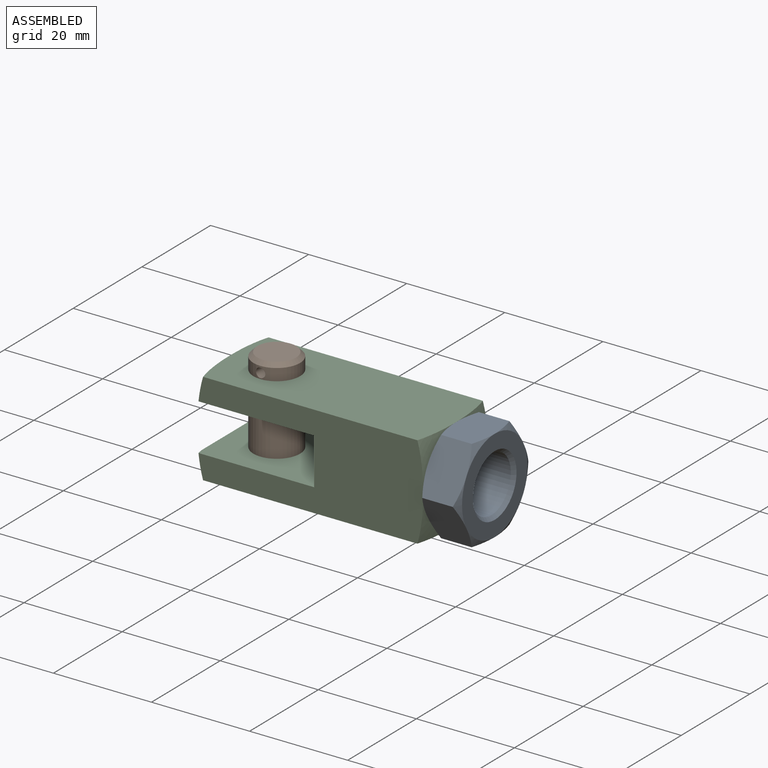
[diagram: assembled view]
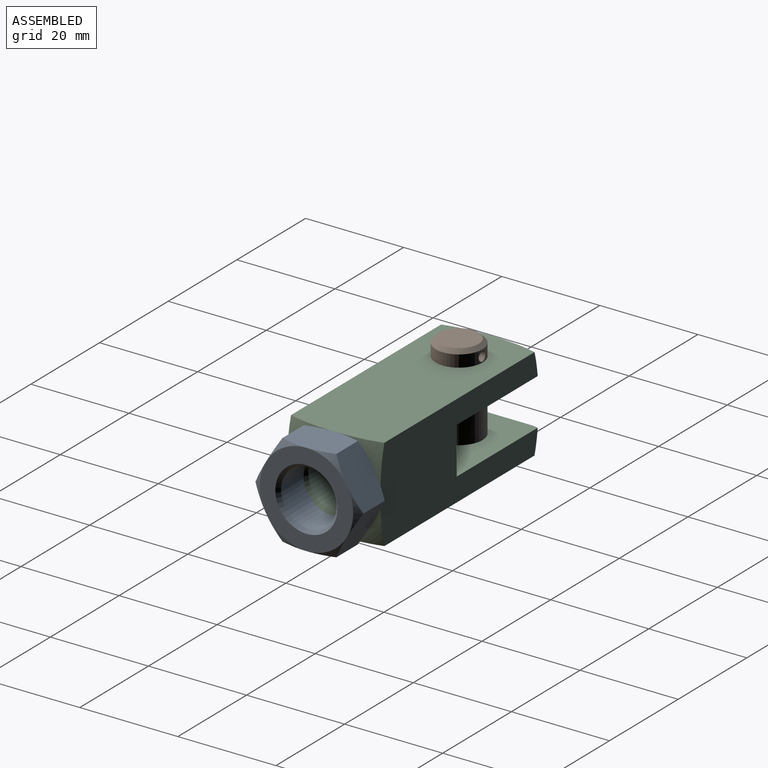
[diagram: assembled view, second angle]
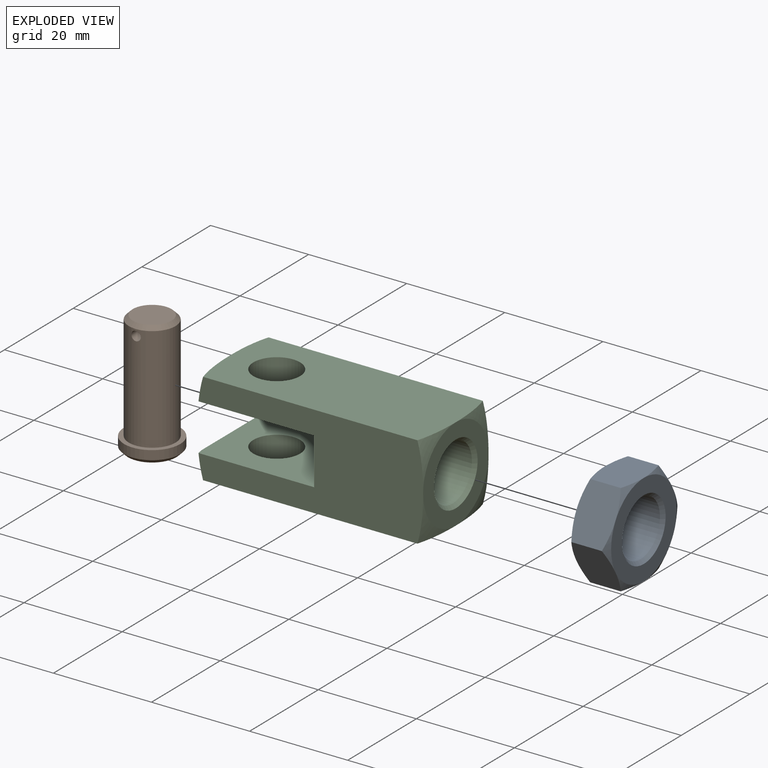
[diagram: exploded view]
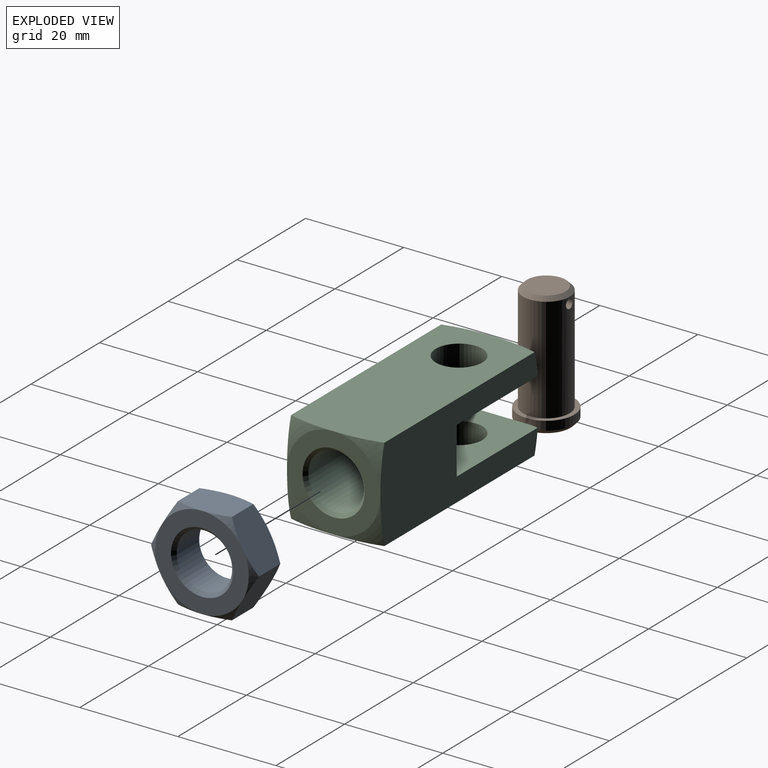
[diagram: exploded view, second angle]
ASSEMBLY  parts=3 mates=2
PART A: 23 faces, bbox 7.9x22x22 mm
  f0: plane 11x7.94mm, normal (0,0,1), area 80.9mm2, adj f1,f2,f6,f7,f15,f16
  f1: plane 9.53x7.94mm, normal (0,0.87,0.5), area 80.9mm2, adj f0,f5,f7,f14,f16,f19
  f2: plane 9.53x7.94mm, normal (0,-0.87,0.5), area 80.9mm2, adj f0,f4,f6,f8,f13,f15
  f3: plane 19.05x19.05mm, normal (1,0,0), area 158.3mm2, adj f4,f5,f15,f16,f17,f18,f22
  f4: cone r=11.43mm half-angle=60deg, axis (-1,0,0), area 5.6mm2, adj f2,f3,f13
  f5: cone r=11.43mm half-angle=60deg, axis (-1,0,0), area 5.6mm2, adj f1,f3,f14
  f6: cone r=9.53mm half-angle=60deg, axis (1,0,0), area 5.6mm2, adj f0,f2,f9
  f7: cone r=9.53mm half-angle=60deg, axis (1,0,0), area 5.6mm2, adj f0,f1,f9
  f8: cone r=9.53mm half-angle=60deg, axis (1,0,0), area 5.6mm2, adj f2,f9,f13
  f9: plane 19.05x19.05mm, normal (-1,0,0), area 158.3mm2, adj f6,f7,f8,f10,f11,f19,f20
  f10: cone r=9.53mm half-angle=60deg, axis (1,0,0), area 5.6mm2, adj f9,f12,f13
  f11: cone r=9.53mm half-angle=60deg, axis (1,0,0), area 5.6mm2, adj f9,f12,f14
  f12: plane 11x7.94mm, normal (0,0,-1), area 80.9mm2, adj f10,f11,f13,f14,f17,f18
  f13: plane 9.53x7.94mm, normal (0,-0.87,-0.5), area 80.9mm2, adj f2,f4,f8,f10,f12,f17
  f14: plane 9.53x7.94mm, normal (0,0.87,-0.5), area 80.9mm2, adj f1,f5,f11,f12,f18,f19
  f15: cone r=11.43mm half-angle=60deg, axis (-1,0,0), area 5.6mm2, adj f0,f2,f3
  f16: cone r=11.43mm half-angle=60deg, axis (-1,0,0), area 5.6mm2, adj f0,f1,f3
  f17: cone r=11.43mm half-angle=60deg, axis (-1,0,0), area 5.6mm2, adj f3,f12,f13
  f18: cone r=11.43mm half-angle=60deg, axis (-1,0,0), area 5.6mm2, adj f3,f12,f14
  f19: cone r=9.53mm half-angle=60deg, axis (1,0,0), area 5.6mm2, adj f1,f9,f14
  f20: cone r=6.35mm half-angle=45deg, axis (-1,0,0), area 36.7mm2, adj f9,f21
  f21: cylinder r=5.66mm len=11.33mm, axis (-1,0,0), area 233.5mm2, adj f20,f22
  f22: cone r=5.66mm half-angle=45deg, axis (1,0,0), area 36.7mm2, adj f3,f21
PART B: 8 faces, bbox 11.4x11.4x24.9 mm
  f0: cylinder r=0.95mm len=9.53mm, axis (0,1,0), area 57mm2, adj f6
  f1: plane 9.84x9.84mm, normal (0,0,-1), area 76.1mm2, adj f2
  f2: cone r=5.71mm half-angle=45deg, axis (0,0,1), area 37.5mm2, adj f1,f3
  f3: cylinder r=5.71mm len=11.43mm, axis (0,0,1), area 66.5mm2, adj f2,f4
  f4: plane 11.43x11.43mm, normal (0,0,1), area 31.4mm2, adj f3,f6
  f5: cone r=3.97mm half-angle=45deg, axis (0,0,-1), area 30.8mm2, adj f6,f7
  f6: cylinder r=4.76mm len=21.48mm, axis (0,0,1), area 637.1mm2, adj f0,f4,f5
  f7: plane 7.94x7.94mm, normal (0,0,1), area 49.5mm2, adj f5
PART C: 25 faces, bbox 46.1x27x27 mm
  f0: torus R=6.15mm, axis (1,0,0), area 20.1mm2, adj f1,f23,f24
  f1: plane 46.04x19.05mm, normal (0,0,-1), area 792.3mm2, adj f0,f6,f10,f12,f15,f17,f24
  f2: plane 46.04x19.05mm, normal (0,0,1), area 792.3mm2, adj f6,f11,f13,f14,f16,f22,f24
  f3: plane 16.5x4.76mm, normal (-1,0,0), area 55.7mm2, adj f5,f14,f16
  f4: plane 16.5x4.76mm, normal (-1,0,0), area 55.7mm2, adj f8,f15,f17
  f5: plane 23.85x19.09mm, normal (0,0,-1), area 382.1mm2, adj f3,f6,f7,f9,f14,f16,f20,f22
  f6: plane 45.8x19.05mm, normal (0,-1,0), area 637.5mm2, adj f1,f2,f5,f8,f9,f10,f11,f16
  f7: plane 9.53x6.46mm, normal (-1,0,0), area 44.1mm2, adj f5,f8,f19,f24
  f8: plane 23.85x19.09mm, normal (0,0,1), area 382.1mm2, adj f4,f6,f7,f9,f12,f15,f17,f21
  f9: plane 9.53x6.46mm, normal (-1,0,0), area 44.1mm2, adj f5,f6,f8,f19
  f10: torus R=6.15mm, axis (1,0,0), area 20.1mm2, adj f1,f6,f23
  f11: torus R=6.15mm, axis (1,0,0), area 20.1mm2, adj f2,f6,f23
  f12: cylinder r=4.76mm len=9.53mm, axis (0,0,1), area 142.5mm2, adj f1,f8
  f13: torus R=6.15mm, axis (1,0,0), area 20.1mm2, adj f2,f23,f24
  f14: torus R=6.15mm, axis (1,0,0), area 18.1mm2, adj f2,f3,f5,f24
  f15: torus R=6.15mm, axis (1,0,0), area 18.1mm2, adj f1,f4,f8,f24
  f16: torus R=6.15mm, axis (1,0,0), area 18.1mm2, adj f2,f3,f5,f6
  f17: torus R=6.15mm, axis (1,0,0), area 18.1mm2, adj f1,f4,f6,f8
  f18: cone r=5.66mm half-angle=45deg, axis (1,0,0), area 36.7mm2, adj f19,f23
  f19: cylinder r=5.66mm len=21.54mm, axis (-1,0,0), area 766.3mm2, adj f7,f9,f18,f20,f21
  f20: plane 6.13x0.9mm, normal (1,0,0), area 3.7mm2, adj f5,f19
  f21: plane 6.13x0.9mm, normal (1,0,0), area 3.7mm2, adj f8,f19
  f22: cylinder r=4.76mm len=9.53mm, axis (0,0,1), area 142.5mm2, adj f2,f5
  f23: plane 19.05x19.05mm, normal (1,0,0), area 158.3mm2, adj f0,f10,f11,f13,f18
  f24: plane 45.8x19.05mm, normal (0,1,0), area 637.5mm2, adj f0,f1,f2,f5,f7,f8,f13,f14
PLACE A t=(-3.96,0,0)mm
PLACE B at identity
PLACE C at identity
MATE fastened B.f2 <-> C.f12  axis (0,0,1) through (9.53,0,-9.53)mm
MATE fastened A.f4 <-> C.f18  axis (-1,0,0) through (46.04,0,0)mm
